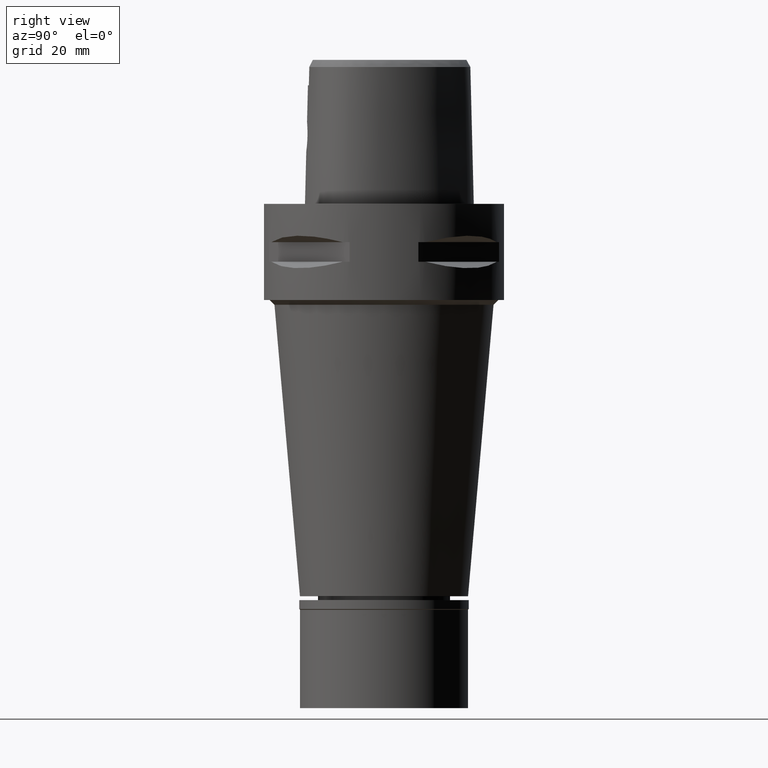
[diagram: clean part render]
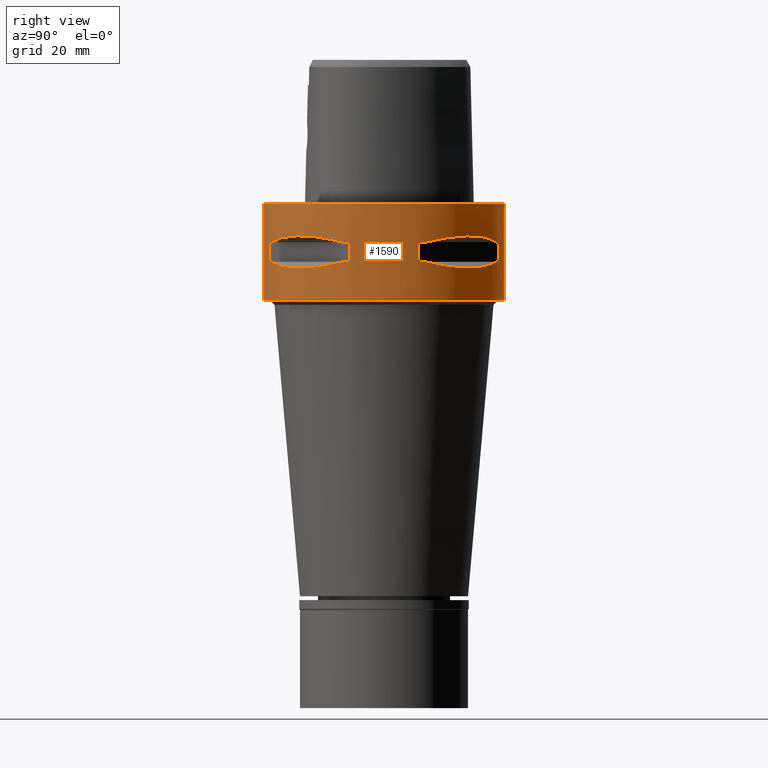
[diagram: same view with one face highlighted and labeled with its STEP entity id]
A machine part, right view. The second image highlights one B-rep face of the part: STEP entity #1590.
In plain terms, the highlighted cylindrical surface (partial cylindrical patch) has radius 25 mm, axis along (0, 0, -1).
Its self-contained STEP definition (entity closure, byte-faithful):
#16 = EDGE_CURVE ( 'NONE', #2878, #281, #213, .T. ) ;
#18 = ORIENTED_EDGE ( 'NONE', *, *, #1149, .T. ) ;
#53 = CARTESIAN_POINT ( 'NONE',  ( 23.95277699797999915, 7.159921374230999724, -7.950000000000000178 ) ) ;
#67 = VERTEX_POINT ( 'NONE', #3158 ) ;
#84 = EDGE_CURVE ( 'NONE', #4931, #959, #3937, .T. ) ;
#109 = VERTEX_POINT ( 'NONE', #1653 ) ;
#120 = DIRECTION ( 'NONE',  ( 0.0000000000000000000, 0.0000000000000000000, 1.000000000000000000 ) ) ;
#147 = DIRECTION ( 'NONE',  ( 0.9382863520558295534, 0.3458593956303108730, 0.0000000000000000000 ) ) ;
#159 = AXIS2_PLACEMENT_3D ( 'NONE', #4183, #4558, #3058 ) ;
#181 = CARTESIAN_POINT ( 'NONE',  ( 7.159921374230999724, -23.95277699797999915, -7.950000000000000178 ) ) ;
#183 = CARTESIAN_POINT ( 'NONE',  ( 11.99631184318432275, -22.00754773654066199, -7.175632472871786405 ) ) ;
#213 = CIRCLE ( 'NONE', #3169, 25.00000000000001066 ) ;
#247 = CARTESIAN_POINT ( 'NONE',  ( 23.45715880140000209, 8.646484890756999775, -12.05000000000000071 ) ) ;
#281 = VERTEX_POINT ( 'NONE', #1435 ) ;
#379 = B_SPLINE_CURVE_WITH_KNOTS ( 'NONE', 3,
 ( #802, #4625, #3855, #775, #1564, #3145, #1203, #3166, #831, #4654, #1253, #2796, #1929, #2301, #3828, #2370, #1974, #2743, #2689, #3072, #4222, #1953, #431, #3477 ),
 .UNSPECIFIED., .F., .F.,
 ( 4, 1, 1, 1, 1, 1, 2, 2, 2, 1, 1, 1, 1, 1, 2, 2, 4 ),
 ( 0.0000000000000000000, 0.1250000000000068834, 0.1875000000000101308, 0.2187500000000117406, 0.2343750000000125733, 0.2421875000000129341, 0.2460937500000130174, 0.2500000000000131006, 0.5000000000000111022, 0.6250000000000101030, 0.6875000000000099920, 0.7187500000000099920, 0.7343750000000099920, 0.7421875000000098810, 0.7460937500000098810, 0.7500000000000098810, 1.000000000000000000 ),
 .UNSPECIFIED. ) ;
#385 = VERTEX_POINT ( 'NONE', #3749 ) ;
#386 = AXIS2_PLACEMENT_3D ( 'NONE', #1377, #530, #147 ) ;
#404 = DIRECTION ( 'NONE',  ( 0.0000000000000000000, 0.0000000000000000000, -1.000000000000000000 ) ) ;
#417 = ORIENTED_EDGE ( 'NONE', *, *, #3070, .T. ) ;
#419 = EDGE_CURVE ( 'NONE', #4298, #2217, #2775, .T. ) ;
#431 = CARTESIAN_POINT ( 'NONE',  ( 22.81626994452193458, -10.38516041956038727, -12.49816953211166037 ) ) ;
#487 = AXIS2_PLACEMENT_3D ( 'NONE', #1988, #1647, #2284 ) ;
#504 = CARTESIAN_POINT ( 'NONE',  ( 7.159921374235000080, -23.95277699797999915, -7.950000000000000178 ) ) ;
#530 = DIRECTION ( 'NONE',  ( 0.0000000000000000000, 0.0000000000000000000, -1.000000000000000000 ) ) ;
#578 = CARTESIAN_POINT ( 'NONE',  ( 16.07509500019029502, 19.18226349638565509, -13.33749867751885532 ) ) ;
#592 = CARTESIAN_POINT ( 'NONE',  ( 16.42437865147233111, -18.93096040785503220, -6.622505547239580181 ) ) ;
#606 = EDGE_CURVE ( 'NONE', #4298, #755, #3098, .T. ) ;
#613 = CARTESIAN_POINT ( 'NONE',  ( 23.45715880140000209, -8.646484890751999330, -7.949999999998999201 ) ) ;
#628 = EDGE_CURVE ( 'NONE', #3592, #67, #379, .T. ) ;
#655 = DIRECTION ( 'NONE',  ( 0.0000000000000000000, 0.0000000000000000000, 1.000000000000000000 ) ) ;
#689 = EDGE_CURVE ( 'NONE', #3139, #983, #1459, .T. ) ;
#720 = AXIS2_PLACEMENT_3D ( 'NONE', #4589, #4010, #988 ) ;
#755 = VERTEX_POINT ( 'NONE', #2840 ) ;
#759 = CARTESIAN_POINT ( 'NONE',  ( 7.159921374235000080, 23.95277699797999915, -12.05000000000000071 ) ) ;
#766 = ORIENTED_EDGE ( 'NONE', *, *, #628, .F. ) ;
#773 = EDGE_CURVE ( 'NONE', #3139, #109, #1592, .T. ) ;
#775 = CARTESIAN_POINT ( 'NONE',  ( 12.20403021317722292, -21.82791133048418786, -12.83722430138600323 ) ) ;
#787 = AXIS2_PLACEMENT_3D ( 'NONE', #4697, #120, #1345 ) ;
#802 = CARTESIAN_POINT ( 'NONE',  ( 8.646484890756999775, -23.45715880140000209, -12.05000000000000071 ) ) ;
#831 = CARTESIAN_POINT ( 'NONE',  ( 13.53433973752400554, -21.01958685664054372, -13.05032380590162333 ) ) ;
#848 = ORIENTED_EDGE ( 'NONE', *, *, #773, .T. ) ;
#871 = CARTESIAN_POINT ( 'NONE',  ( 0.0000000000000000000, -25.00000000000000000, 0.0000000000000000000 ) ) ;
#890 = CIRCLE ( 'NONE', #1497, 25.00000000000001066 ) ;
#892 = EDGE_CURVE ( 'NONE', #4557, #281, #3794, .T. ) ;
#904 = CARTESIAN_POINT ( 'NONE',  ( 20.02826730452214932, 15.06560254769159712, -13.27075471794772277 ) ) ;
#923 = CARTESIAN_POINT ( 'NONE',  ( 13.60713573003037880, 20.97251445226597966, -13.06082541678103404 ) ) ;
#933 = VERTEX_POINT ( 'NONE', #4909 ) ;
#945 = DIRECTION ( 'NONE',  ( 0.0000000000000000000, 0.0000000000000000000, -1.000000000000000000 ) ) ;
#959 = VERTEX_POINT ( 'NONE', #4543 ) ;
#967 = LINE ( 'NONE', #2483, #4212 ) ;
#976 = ORIENTED_EDGE ( 'NONE', *, *, #16, .T. ) ;
#983 = VERTEX_POINT ( 'NONE', #3444 ) ;
#988 = DIRECTION ( 'NONE',  ( 0.9581110799190402094, -0.2863968549694120291, 0.0000000000000000000 ) ) ;
#1028 = EDGE_LOOP ( 'NONE', ( #976, #2814, #1064, #766, #3189, #2169, #4411, #417 ) ) ;
#1029 = AXIS2_PLACEMENT_3D ( 'NONE', #1609, #1999, #3522 ) ;
#1042 = VERTEX_POINT ( 'NONE', #504 ) ;
#1051 = EDGE_LOOP ( 'NONE', ( #3540, #3893, #4959, #1904 ) ) ;
#1064 = ORIENTED_EDGE ( 'NONE', *, *, #3021, .T. ) ;
#1066 = ORIENTED_EDGE ( 'NONE', *, *, #1460, .T. ) ;
#1130 = CARTESIAN_POINT ( 'NONE',  ( 0.0000000000000000000, -25.00000000000000000, -20.00000000000000000 ) ) ;
#1149 = EDGE_CURVE ( 'NONE', #4931, #983, #1827, .T. ) ;
#1178 = CARTESIAN_POINT ( 'NONE',  ( 0.0000000000000000000, 25.00000000000000000, 0.0000000000000000000 ) ) ;
#1192 = CARTESIAN_POINT ( 'NONE',  ( 22.00754773658079344, 11.99631184311074428, -7.175632472892017333 ) ) ;
#1203 = CARTESIAN_POINT ( 'NONE',  ( 13.41274673326371314, -21.09754014382099285, -13.03250796600744721 ) ) ;
#1253 = CARTESIAN_POINT ( 'NONE',  ( 15.06560254765663132, -20.02826730455345583, -13.27075471794622885 ) ) ;
#1264 = DIRECTION ( 'NONE',  ( 0.2863968549694120291, -0.9581110799190402094, 0.0000000000000000000 ) ) ;
#1300 = FACE_BOUND ( 'NONE', #1028, .T. ) ;
#1301 = CARTESIAN_POINT ( 'NONE',  ( 14.22535762328483067, 20.56020460723039278, -13.14488865845230592 ) ) ;
#1304 = EDGE_CURVE ( 'NONE', #3717, #755, #3326, .T. ) ;
#1332 = EDGE_CURVE ( 'NONE', #2217, #3717, #967, .T. ) ;
#1345 = DIRECTION ( 'NONE',  ( 0.0000000000000000000, -1.000000000000000000, 0.0000000000000000000 ) ) ;
#1377 = CARTESIAN_POINT ( 'NONE',  ( 0.0000000000000000000, 1.284838189324999924E-14, -12.05000000000000071 ) ) ;
#1394 = CARTESIAN_POINT ( 'NONE',  ( 20.06074199769976829, -15.02698525043415145, -6.733118915137212390 ) ) ;
#1435 = CARTESIAN_POINT ( 'NONE',  ( 23.95277699797999915, -7.159921374230999724, -7.950000000000000178 ) ) ;
#1451 = VECTOR ( 'NONE', #2463, 1000.000000000000000 ) ;
#1459 = B_SPLINE_CURVE_WITH_KNOTS ( 'NONE', 3,
 ( #247, #2893, #3965, #3623, #2144, #4372, #1732, #3267, #1780, #3944, #904, #3293, #2490, #578, #3238, #1301, #2419, #2819, #4776, #4807, #923, #2051, #4325, #2441 ),
 .UNSPECIFIED., .F., .F.,
 ( 4, 1, 1, 1, 1, 1, 2, 2, 2, 1, 1, 1, 1, 1, 2, 2, 4 ),
 ( 0.0000000000000000000, 0.1249999999999982236, 0.1874999999999974465, 0.2187499999999970302, 0.2343749999999969469, 0.2421874999999968081, 0.2460937499999968359, 0.2499999999999968914, 0.4999999999999973355, 0.6249999999999973355, 0.6874999999999976685, 0.7187499999999978906, 0.7343749999999980016, 0.7421874999999980016, 0.7460937499999978906, 0.7499999999999978906, 1.000000000000000000 ),
 .UNSPECIFIED. ) ;
#1460 = EDGE_CURVE ( 'NONE', #2545, #385, #4793, .T. ) ;
#1497 = AXIS2_PLACEMENT_3D ( 'NONE', #3939, #2457, #4850 ) ;
#1522 = CARTESIAN_POINT ( 'NONE',  ( 20.06077645874710313, 15.02693924547574866, -6.733132781305681824 ) ) ;
#1536 = CARTESIAN_POINT ( 'NONE',  ( 23.45715880140000209, 8.646484890751999330, -7.949999999998999201 ) ) ;
#1564 = CARTESIAN_POINT ( 'NONE',  ( 12.89853354821786624, -21.41803043592453548, -12.95342092614003349 ) ) ;
#1589 = AXIS2_PLACEMENT_3D ( 'NONE', #2275, #3800, #2346 ) ;
#1590 = ADVANCED_FACE ( 'NONE', ( #3994, #1300, #3943 ), #3237, .T. ) ;
#1592 = CIRCLE ( 'NONE', #386, 25.00000000000001066 ) ;
#1600 = CARTESIAN_POINT ( 'NONE',  ( 23.95277699797999915, -7.159921374235000080, -12.05000000000000071 ) ) ;
#1602 = CARTESIAN_POINT ( 'NONE',  ( 23.45715880140000209, 8.646484890751999330, -7.949999999998999201 ) ) ;
#1604 = DIRECTION ( 'NONE',  ( 0.0000000000000000000, 0.0000000000000000000, 1.000000000000000000 ) ) ;
#1609 = CARTESIAN_POINT ( 'NONE',  ( 0.0000000000000000000, 1.284838189324999924E-14, -12.05000000000000071 ) ) ;
#1647 = DIRECTION ( 'NONE',  ( 0.0000000000000000000, 0.0000000000000000000, 1.000000000000000000 ) ) ;
#1653 = CARTESIAN_POINT ( 'NONE',  ( 23.95277699797999915, 7.159921374230999724, -12.05000000000000071 ) ) ;
#1700 = CARTESIAN_POINT ( 'NONE',  ( 0.0000000000000000000, 25.00000000000000000, 0.0000000000000000000 ) ) ;
#1721 = CARTESIAN_POINT ( 'NONE',  ( 15.02693924554282034, -20.06077645869683579, -6.733132781285451784 ) ) ;
#1732 = CARTESIAN_POINT ( 'NONE',  ( 21.09754014381971388, 13.41274673326716282, -13.03250796600833716 ) ) ;
#1735 = VECTOR ( 'NONE', #3978, 1000.000000000000000 ) ;
#1745 = CARTESIAN_POINT ( 'NONE',  ( 23.45715880140000209, 8.646484890756999775, -12.05000000000000071 ) ) ;
#1768 = CARTESIAN_POINT ( 'NONE',  ( 22.82437128824116712, -10.36318218117755841, -7.507495686413086844 ) ) ;
#1780 = CARTESIAN_POINT ( 'NONE',  ( 21.01958685664017068, 13.53433973752500918, -13.05032380590188446 ) ) ;
#1827 = CIRCLE ( 'NONE', #1029, 24.99999999999999645 ) ;
#1904 = ORIENTED_EDGE ( 'NONE', *, *, #606, .F. ) ;
#1929 = CARTESIAN_POINT ( 'NONE',  ( 18.30096971348435630, -17.05439749817190176, -13.37751056790094850 ) ) ;
#1953 = CARTESIAN_POINT ( 'NONE',  ( 21.99328990740119139, -12.03062603421341770, -12.83394786307044022 ) ) ;
#1965 = CARTESIAN_POINT ( 'NONE',  ( 0.0000000000000000000, 1.284838189324999924E-14, -7.950000000000000178 ) ) ;
#1974 = CARTESIAN_POINT ( 'NONE',  ( 20.77616787493668937, -13.90573822667970916, -13.10257122103325145 ) ) ;
#1988 = CARTESIAN_POINT ( 'NONE',  ( 0.0000000000000000000, 1.284838189324999924E-14, -7.950000000000000178 ) ) ;
#1999 = DIRECTION ( 'NONE',  ( 0.0000000000000000000, 0.0000000000000000000, -1.000000000000000000 ) ) ;
#2051 = CARTESIAN_POINT ( 'NONE',  ( 12.03062603423778754, 21.99328990739221013, -12.83394786307672675 ) ) ;
#2070 = ORIENTED_EDGE ( 'NONE', *, *, #3474, .T. ) ;
#2115 = DIRECTION ( 'NONE',  ( 0.0000000000000000000, 0.0000000000000000000, -1.000000000000000000 ) ) ;
#2144 = CARTESIAN_POINT ( 'NONE',  ( 21.41803043591995959, 12.89853354823032738, -12.95342092614324869 ) ) ;
#2169 = ORIENTED_EDGE ( 'NONE', *, *, #4602, .F. ) ;
#2217 = VERTEX_POINT ( 'NONE', #871 ) ;
#2275 = CARTESIAN_POINT ( 'NONE',  ( 0.0000000000000000000, 1.284838189324999924E-14, 0.0000000000000000000 ) ) ;
#2284 = DIRECTION ( 'NONE',  ( 0.9581110799190402094, 0.2863968549694120291, 0.0000000000000000000 ) ) ;
#2301 = CARTESIAN_POINT ( 'NONE',  ( 19.18226349639588690, -16.07509500018327131, -13.33749867752016449 ) ) ;
#2346 = DIRECTION ( 'NONE',  ( 0.0000000000000000000, 1.000000000000000000, 0.0000000000000000000 ) ) ;
#2362 = DIRECTION ( 'NONE',  ( 0.9382863520558295534, -0.3458593956303108730, 0.0000000000000000000 ) ) ;
#2370 = CARTESIAN_POINT ( 'NONE',  ( 20.56020460723486565, -14.22535762328174691, -13.14488865845287080 ) ) ;
#2388 = CARTESIAN_POINT ( 'NONE',  ( 7.159921374230999724, 23.95277699797999915, -12.05000000000000071 ) ) ;
#2419 = CARTESIAN_POINT ( 'NONE',  ( 13.90573822668135406, 20.77616787493428774, -13.10257122103294058 ) ) ;
#2441 = CARTESIAN_POINT ( 'NONE',  ( 8.646484890751999330, 23.45715880140000209, -12.05000000000000071 ) ) ;
#2457 = DIRECTION ( 'NONE',  ( 0.0000000000000000000, 0.0000000000000000000, 1.000000000000000000 ) ) ;
#2463 = DIRECTION ( 'NONE',  ( 0.0000000000000000000, 0.0000000000000000000, -1.000000000000000000 ) ) ;
#2464 = CARTESIAN_POINT ( 'NONE',  ( 0.0000000000000000000, 1.284838189324999924E-14, 4.915000000000000036 ) ) ;
#2483 = CARTESIAN_POINT ( 'NONE',  ( 0.0000000000000000000, -25.00000000000000000, 0.0000000000000000000 ) ) ;
#2490 = CARTESIAN_POINT ( 'NONE',  ( 17.05439749817592343, 18.30096971347850499, -13.37751056790020598 ) ) ;
#2525 = CARTESIAN_POINT ( 'NONE',  ( 8.646484890751999330, -23.45715880140000209, -7.949999999998999201 ) ) ;
#2545 = VERTEX_POINT ( 'NONE', #1536 ) ;
#2546 = CIRCLE ( 'NONE', #487, 24.99999999999999645 ) ;
#2677 = CARTESIAN_POINT ( 'NONE',  ( 22.82438450745431524, 10.36314631860615876, -7.507504930525397135 ) ) ;
#2689 = CARTESIAN_POINT ( 'NONE',  ( 20.92801700160322298, -13.67544437571097404, -13.07054629644096444 ) ) ;
#2702 = CARTESIAN_POINT ( 'NONE',  ( 8.646484890756999775, -23.45715880140000209, -12.05000000000000071 ) ) ;
#2704 = CARTESIAN_POINT ( 'NONE',  ( 16.42437865151178045, 18.93096040781560063, -6.622496303226938608 ) ) ;
#2743 = CARTESIAN_POINT ( 'NONE',  ( 20.88268233906207172, -13.74471461761599400, -13.08031795579753087 ) ) ;
#2756 = CARTESIAN_POINT ( 'NONE',  ( 15.02698525050126044, 20.06074199764951871, -6.733118915116992120 ) ) ;
#2775 = CIRCLE ( 'NONE', #1589, 25.00000000000000000 ) ;
#2783 = VERTEX_POINT ( 'NONE', #4924 ) ;
#2796 = CARTESIAN_POINT ( 'NONE',  ( 16.43106916202457057, -18.92421359264944769, -13.37747608848233760 ) ) ;
#2814 = ORIENTED_EDGE ( 'NONE', *, *, #892, .F. ) ;
#2819 = CARTESIAN_POINT ( 'NONE',  ( 13.74471461761685198, 20.88268233906084248, -13.08031795579737455 ) ) ;
#2840 = CARTESIAN_POINT ( 'NONE',  ( 0.0000000000000000000, 25.00000000000000000, -20.00000000000000000 ) ) ;
#2844 = VECTOR ( 'NONE', #4694, 1000.000000000000000 ) ;
#2878 = VERTEX_POINT ( 'NONE', #4781 ) ;
#2893 = CARTESIAN_POINT ( 'NONE',  ( 23.13678124604550845, 9.515641234313701347, -12.27403800213050111 ) ) ;
#2910 = ORIENTED_EDGE ( 'NONE', *, *, #689, .F. ) ;
#2946 = AXIS2_PLACEMENT_3D ( 'NONE', #2464, #945, #3622 ) ;
#2962 = ORIENTED_EDGE ( 'NONE', *, *, #4172, .T. ) ;
#3021 = EDGE_CURVE ( 'NONE', #4557, #67, #3675, .T. ) ;
#3058 = DIRECTION ( 'NONE',  ( 0.3458593956303108730, -0.9382863520558295534, 0.0000000000000000000 ) ) ;
#3070 = EDGE_CURVE ( 'NONE', #3347, #2878, #3825, .T. ) ;
#3072 = CARTESIAN_POINT ( 'NONE',  ( 20.95817024473895174, -13.62920640916654591, -13.06397973560678061 ) ) ;
#3098 = LINE ( 'NONE', #1178, #4368 ) ;
#3139 = VERTEX_POINT ( 'NONE', #1745 ) ;
#3145 = CARTESIAN_POINT ( 'NONE',  ( 13.24197703503267931, -21.20561591939681634, -13.00691327926098495 ) ) ;
#3158 = CARTESIAN_POINT ( 'NONE',  ( 23.45715880140000209, -8.646484890751999330, -12.05000000000000071 ) ) ;
#3166 = CARTESIAN_POINT ( 'NONE',  ( 13.48572973711064193, -21.05082155772163688, -13.04323036965292637 ) ) ;
#3169 = AXIS2_PLACEMENT_3D ( 'NONE', #1965, #1604, #2362 ) ;
#3189 = ORIENTED_EDGE ( 'NONE', *, *, #3510, .T. ) ;
#3237 = CYLINDRICAL_SURFACE ( 'NONE', #2946, 25.00000000000000000 ) ;
#3238 = CARTESIAN_POINT ( 'NONE',  ( 14.85488513038957592, 20.11654071401955335, -13.22076716108393413 ) ) ;
#3267 = CARTESIAN_POINT ( 'NONE',  ( 21.05082155772089436, 13.48572973711263323, -13.04323036965343618 ) ) ;
#3293 = CARTESIAN_POINT ( 'NONE',  ( 18.92421359264142211, 16.43106916203626611, -13.37747608848383329 ) ) ;
#3326 = CIRCLE ( 'NONE', #787, 25.00000000000000000 ) ;
#3347 = VERTEX_POINT ( 'NONE', #2525 ) ;
#3436 = CARTESIAN_POINT ( 'NONE',  ( 10.36318218122983481, 22.82437128822192207, -7.507495686399606960 ) ) ;
#3444 = CARTESIAN_POINT ( 'NONE',  ( 8.646484890751999330, 23.45715880140000209, -12.05000000000000071 ) ) ;
#3461 = CARTESIAN_POINT ( 'NONE',  ( 0.0000000000000000000, 1.284838189324999924E-14, -7.950000000000000178 ) ) ;
#3474 = EDGE_CURVE ( 'NONE', #933, #2545, #2546, .T. ) ;
#3477 = CARTESIAN_POINT ( 'NONE',  ( 23.45715880140000209, -8.646484890751999330, -12.05000000000000071 ) ) ;
#3510 = EDGE_CURVE ( 'NONE', #3592, #2783, #3914, .T. ) ;
#3522 = DIRECTION ( 'NONE',  ( 0.2863968549694120291, 0.9581110799190402094, 0.0000000000000000000 ) ) ;
#3540 = ORIENTED_EDGE ( 'NONE', *, *, #419, .T. ) ;
#3592 = VERTEX_POINT ( 'NONE', #2702 ) ;
#3622 = DIRECTION ( 'NONE',  ( 0.0000000000000000000, -1.000000000000000000, 0.0000000000000000000 ) ) ;
#3623 = CARTESIAN_POINT ( 'NONE',  ( 21.82791133047632215, 12.20403021319857828, -12.83722430139150994 ) ) ;
#3634 = CARTESIAN_POINT ( 'NONE',  ( 8.646484890751999330, -23.45715880140000209, -7.949999999998999201 ) ) ;
#3675 = CIRCLE ( 'NONE', #720, 24.99999999999999645 ) ;
#3717 = VERTEX_POINT ( 'NONE', #1130 ) ;
#3749 = CARTESIAN_POINT ( 'NONE',  ( 8.646484890751999330, 23.45715880140000209, -7.949999999998999201 ) ) ;
#3794 = LINE ( 'NONE', #4858, #4054 ) ;
#3800 = DIRECTION ( 'NONE',  ( 0.0000000000000000000, 0.0000000000000000000, -1.000000000000000000 ) ) ;
#3825 = B_SPLINE_CURVE_WITH_KNOTS ( 'NONE', 3,
 ( #3634, #3936, #183, #1721, #592, #4031, #1394, #4741, #1768, #613 ),
 .UNSPECIFIED., .F., .F.,
 ( 4, 2, 2, 2, 4 ),
 ( 0.0000000000000000000, 0.2500000000000000000, 0.5000000000000000000, 0.7500000000000000000, 1.000000000000000000 ),
 .UNSPECIFIED. ) ;
#3828 = CARTESIAN_POINT ( 'NONE',  ( 20.11654071402723432, -14.85488513038430192, -13.22076716108491290 ) ) ;
#3855 = CARTESIAN_POINT ( 'NONE',  ( 10.78455809745186755, -22.58788056562029922, -12.56798337782941566 ) ) ;
#3869 = EDGE_CURVE ( 'NONE', #933, #109, #4255, .T. ) ;
#3889 = CIRCLE ( 'NONE', #4524, 24.99999999999999645 ) ;
#3893 = ORIENTED_EDGE ( 'NONE', *, *, #1332, .T. ) ;
#3914 = CIRCLE ( 'NONE', #159, 25.00000000000001066 ) ;
#3936 = CARTESIAN_POINT ( 'NONE',  ( 10.36314631865839964, -22.82438450743505598, -7.507504930511911923 ) ) ;
#3937 = LINE ( 'NONE', #2388, #2844 ) ;
#3939 = CARTESIAN_POINT ( 'NONE',  ( 0.0000000000000000000, 1.284838189324999924E-14, -7.950000000000000178 ) ) ;
#3943 = FACE_BOUND ( 'NONE', #4637, .T. ) ;
#3944 = CARTESIAN_POINT ( 'NONE',  ( 21.00321793043583796, 13.55971422200765630, -13.05400030967367897 ) ) ;
#3965 = CARTESIAN_POINT ( 'NONE',  ( 22.58788056560981516, 10.78455809748034788, -12.56798337783676267 ) ) ;
#3978 = DIRECTION ( 'NONE',  ( 0.0000000000000000000, 0.0000000000000000000, -1.000000000000000000 ) ) ;
#3994 = FACE_OUTER_BOUND ( 'NONE', #1051, .T. ) ;
#4006 = LINE ( 'NONE', #181, #1735 ) ;
#4010 = DIRECTION ( 'NONE',  ( 0.0000000000000000000, 0.0000000000000000000, -1.000000000000000000 ) ) ;
#4031 = CARTESIAN_POINT ( 'NONE',  ( 18.93096040785499667, -16.42437865147237730, -6.622496303240421156 ) ) ;
#4054 = VECTOR ( 'NONE', #655, 1000.000000000000000 ) ;
#4172 = EDGE_CURVE ( 'NONE', #385, #959, #890, .T. ) ;
#4183 = CARTESIAN_POINT ( 'NONE',  ( 0.0000000000000000000, 1.284838189324999924E-14, -12.05000000000000071 ) ) ;
#4211 = CARTESIAN_POINT ( 'NONE',  ( 18.93096040781554024, 16.42437865151185505, -6.622505547253060953 ) ) ;
#4212 = VECTOR ( 'NONE', #2115, 1000.000000000000000 ) ;
#4222 = CARTESIAN_POINT ( 'NONE',  ( 20.97251445226583755, -13.60713573003076071, -13.06082541678112641 ) ) ;
#4238 = CARTESIAN_POINT ( 'NONE',  ( 8.646484890751999330, 23.45715880140000209, -7.949999999998999201 ) ) ;
#4255 = LINE ( 'NONE', #53, #1451 ) ;
#4286 = CARTESIAN_POINT ( 'NONE',  ( 11.99636231264435615, 22.00752022556853404, -7.175618606703325852 ) ) ;
#4298 = VERTEX_POINT ( 'NONE', #1700 ) ;
#4325 = CARTESIAN_POINT ( 'NONE',  ( 10.38516041958474645, 22.81626994451295332, -12.49816953211793802 ) ) ;
#4355 = ORIENTED_EDGE ( 'NONE', *, *, #3869, .F. ) ;
#4366 = EDGE_CURVE ( 'NONE', #1042, #3347, #3889, .T. ) ;
#4368 = VECTOR ( 'NONE', #404, 1000.000000000000000 ) ;
#4372 = CARTESIAN_POINT ( 'NONE',  ( 21.20561591939435786, 13.24197703503935486, -13.00691327926270446 ) ) ;
#4411 = ORIENTED_EDGE ( 'NONE', *, *, #4366, .T. ) ;
#4524 = AXIS2_PLACEMENT_3D ( 'NONE', #3461, #4613, #1264 ) ;
#4543 = CARTESIAN_POINT ( 'NONE',  ( 7.159921374230999724, 23.95277699797999915, -7.950000000000000178 ) ) ;
#4557 = VERTEX_POINT ( 'NONE', #1600 ) ;
#4558 = DIRECTION ( 'NONE',  ( 0.0000000000000000000, 0.0000000000000000000, -1.000000000000000000 ) ) ;
#4589 = CARTESIAN_POINT ( 'NONE',  ( 0.0000000000000000000, 1.284838189324999924E-14, -12.05000000000000071 ) ) ;
#4602 = EDGE_CURVE ( 'NONE', #1042, #2783, #4006, .T. ) ;
#4613 = DIRECTION ( 'NONE',  ( 0.0000000000000000000, 0.0000000000000000000, 1.000000000000000000 ) ) ;
#4625 = CARTESIAN_POINT ( 'NONE',  ( 9.515641234297431694, -23.13678124605150188, -12.27403800212630536 ) ) ;
#4637 = EDGE_LOOP ( 'NONE', ( #2962, #4895, #18, #2910, #848, #4355, #2070, #1066 ) ) ;
#4654 = CARTESIAN_POINT ( 'NONE',  ( 13.55971422200820520, -21.00321793043535479, -13.05400030967370206 ) ) ;
#4694 = DIRECTION ( 'NONE',  ( 0.0000000000000000000, 0.0000000000000000000, 1.000000000000000000 ) ) ;
#4697 = CARTESIAN_POINT ( 'NONE',  ( 0.0000000000000000000, 1.284838189324999924E-14, -20.00000000000000000 ) ) ;
#4741 = CARTESIAN_POINT ( 'NONE',  ( 22.00752022560862642, -11.99636231257075991, -7.175618606723545234 ) ) ;
#4776 = CARTESIAN_POINT ( 'NONE',  ( 13.67544437571146609, 20.92801700160250533, -13.07054629644086674 ) ) ;
#4781 = CARTESIAN_POINT ( 'NONE',  ( 23.45715880140000209, -8.646484890751999330, -7.949999999998999201 ) ) ;
#4793 = B_SPLINE_CURVE_WITH_KNOTS ( 'NONE', 3,
 ( #1602, #2677, #1192, #1522, #4211, #2704, #2756, #4286, #3436, #4238 ),
 .UNSPECIFIED., .F., .F.,
 ( 4, 2, 2, 2, 4 ),
 ( 0.0000000000000000000, 0.2500000000000000000, 0.5000000000000000000, 0.7500000000000000000, 1.000000000000000000 ),
 .UNSPECIFIED. ) ;
#4807 = CARTESIAN_POINT ( 'NONE',  ( 13.62920640916679993, 20.95817024473859291, -13.06397973560673265 ) ) ;
#4850 = DIRECTION ( 'NONE',  ( 0.3458593956303108730, 0.9382863520558295534, 0.0000000000000000000 ) ) ;
#4858 = CARTESIAN_POINT ( 'NONE',  ( 23.95277699797999915, -7.159921374230999724, -12.05000000000000071 ) ) ;
#4895 = ORIENTED_EDGE ( 'NONE', *, *, #84, .F. ) ;
#4909 = CARTESIAN_POINT ( 'NONE',  ( 23.95277699797999915, 7.159921374235000080, -7.950000000000000178 ) ) ;
#4924 = CARTESIAN_POINT ( 'NONE',  ( 7.159921374230999724, -23.95277699797999915, -12.05000000000000071 ) ) ;
#4931 = VERTEX_POINT ( 'NONE', #759 ) ;
#4959 = ORIENTED_EDGE ( 'NONE', *, *, #1304, .T. ) ;